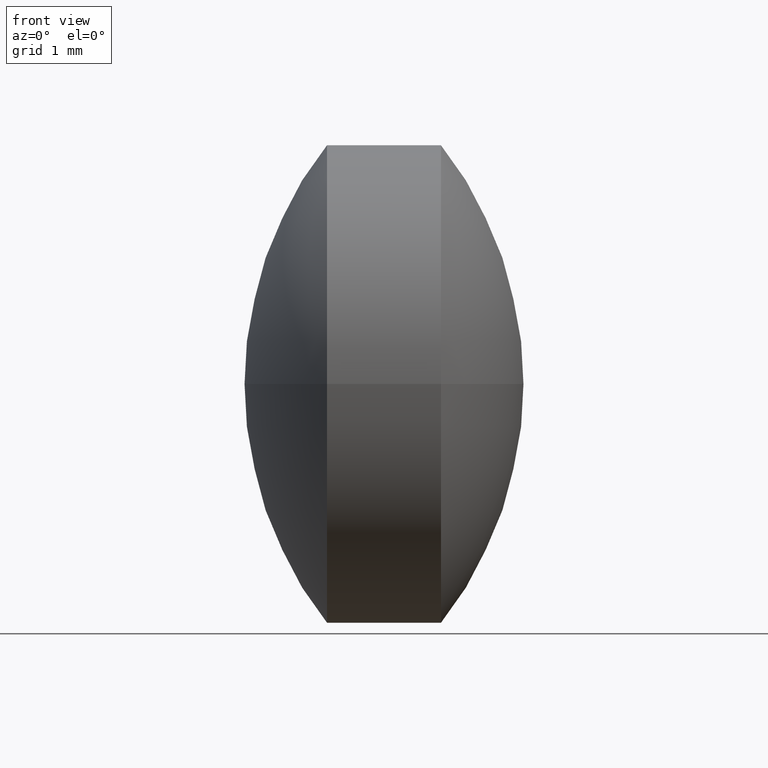
[diagram: clean part render]
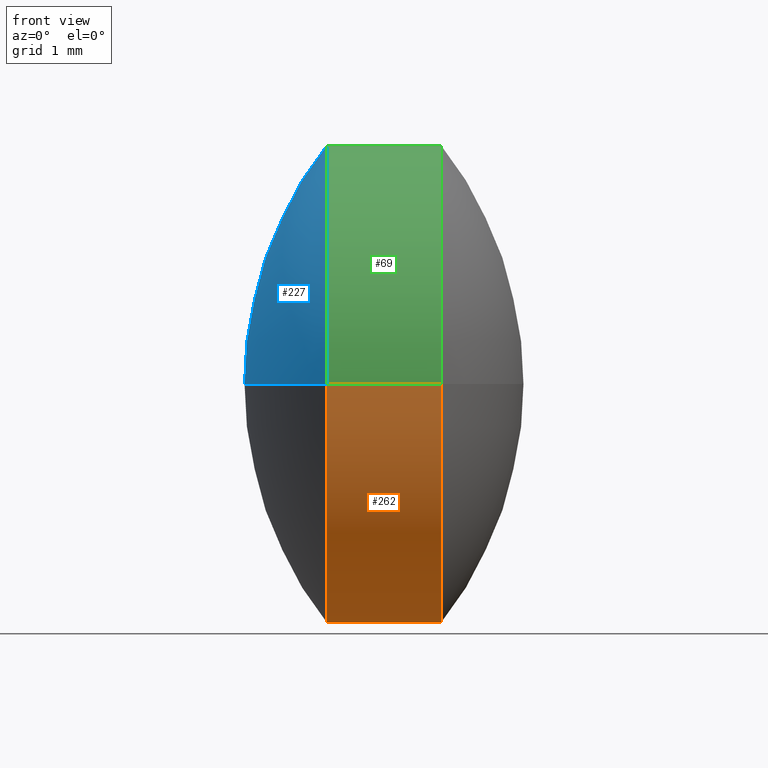
[diagram: same view with three faces highlighted in distinct colors, each labeled with its STEP entity id]
A machine part, front view with three faces highlighted in distinct colors.
Their STEP definitions:

[orange] entity #262 — the highlighted cylindrical surface (partial cylindrical patch) has radius 3.15 mm, axis along (-1, 0, -0).
#12 = CARTESIAN_POINT ( 'NONE',  ( 20.69435814883362200, 15.20832724590803800, 0.0000000000000000000 ) ) ;
#16 = DIRECTION ( 'NONE',  ( -1.000000000000000000, 1.322154552567026900E-015, -0.0000000000000000000 ) ) ;
#19 = ORIENTED_EDGE ( 'NONE', *, *, #263, .F. ) ;
#22 = AXIS2_PLACEMENT_3D ( 'NONE', #299, #16, #180 ) ;
#26 = CARTESIAN_POINT ( 'NONE',  ( 20.69435814883361500, 8.908327245908047600, -3.857637417314156800E-016 ) ) ;
#62 = DIRECTION ( 'NONE',  ( -1.000000000000000000, 1.322154552567026900E-015, -0.0000000000000000000 ) ) ;
#82 = CARTESIAN_POINT ( 'NONE',  ( 18.16424793177497300, 8.908327245908051100, 0.0000000000000000000 ) ) ;
#87 = VERTEX_POINT ( 'NONE', #267 ) ;
#96 = CARTESIAN_POINT ( 'NONE',  ( 22.19435214883361600, 8.908327245908040500, 0.0000000000000000000 ) ) ;
#107 = DIRECTION ( 'NONE',  ( -1.000000000000000000, 1.322154552567026900E-015, -0.0000000000000000000 ) ) ;
#120 = EDGE_CURVE ( 'NONE', #87, #194, #214, .T. ) ;
#126 = CYLINDRICAL_SURFACE ( 'NONE', #257, 3.149999999999995000 ) ;
#130 = VECTOR ( 'NONE', #243, 1000.000000000000000 ) ;
#145 = DIRECTION ( 'NONE',  ( -1.101411730778927500E-015, -1.000000000000000000, 0.0000000000000000000 ) ) ;
#146 = ORIENTED_EDGE ( 'NONE', *, *, #158, .T. ) ;
#149 = CARTESIAN_POINT ( 'NONE',  ( 20.69435814883361900, 12.05832724590804300, 0.0000000000000000000 ) ) ;
#158 = EDGE_CURVE ( 'NONE', #289, #282, #234, .T. ) ;
#180 = DIRECTION ( 'NONE',  ( -1.101411730778926900E-015, -1.000000000000000000, 0.0000000000000000000 ) ) ;
#181 = CARTESIAN_POINT ( 'NONE',  ( 18.16424793177497700, 12.05832724590804600, 0.0000000000000000000 ) ) ;
#185 = CIRCLE ( 'NONE', #200, 3.149999999999993200 ) ;
#194 = VERTEX_POINT ( 'NONE', #12 ) ;
#197 = CARTESIAN_POINT ( 'NONE',  ( 18.16424793177498000, 15.20832724590804100, 3.857637417314155300E-016 ) ) ;
#199 = ORIENTED_EDGE ( 'NONE', *, *, #242, .T. ) ;
#200 = AXIS2_PLACEMENT_3D ( 'NONE', #149, #208, #145 ) ;
#208 = DIRECTION ( 'NONE',  ( -1.000000000000000000, 1.322154552567026900E-015, -0.0000000000000000000 ) ) ;
#214 = LINE ( 'NONE', #197, #130 ) ;
#226 = DIRECTION ( 'NONE',  ( -1.101411730778926900E-015, -1.000000000000000000, 0.0000000000000000000 ) ) ;
#234 = LINE ( 'NONE', #82, #245 ) ;
#242 = EDGE_CURVE ( 'NONE', #87, #289, #265, .T. ) ;
#243 = DIRECTION ( 'NONE',  ( -1.000000000000000000, 1.322154552567026900E-015, -0.0000000000000000000 ) ) ;
#245 = VECTOR ( 'NONE', #107, 1000.000000000000000 ) ;
#255 = EDGE_LOOP ( 'NONE', ( #269, #199, #146, #19 ) ) ;
#257 = AXIS2_PLACEMENT_3D ( 'NONE', #181, #62, #226 ) ;
#262 = ADVANCED_FACE ( 'NONE', ( #281 ), #126, .T. ) ;
#263 = EDGE_CURVE ( 'NONE', #194, #282, #185, .T. ) ;
#265 = CIRCLE ( 'NONE', #22, 3.149999999999995000 ) ;
#267 = CARTESIAN_POINT ( 'NONE',  ( 22.19435214883362300, 15.20832724590804100, 3.857637417314162200E-016 ) ) ;
#269 = ORIENTED_EDGE ( 'NONE', *, *, #120, .F. ) ;
#281 = FACE_OUTER_BOUND ( 'NONE', #255, .T. ) ;
#282 = VERTEX_POINT ( 'NONE', #26 ) ;
#289 = VERTEX_POINT ( 'NONE', #96 ) ;
#299 = CARTESIAN_POINT ( 'NONE',  ( 22.19435214883362000, 12.05832724590804100, 0.0000000000000000000 ) ) ;

[blue] entity #227 — the highlighted spherical surface has radius 5.1151 mm.
#5 = FACE_OUTER_BOUND ( 'NONE', #30, .T. ) ;
#12 = CARTESIAN_POINT ( 'NONE',  ( 20.69435814883362200, 15.20832724590803800, 0.0000000000000000000 ) ) ;
#15 = SPHERICAL_SURFACE ( 'NONE', #276, 5.115099217058601200 ) ;
#26 = CARTESIAN_POINT ( 'NONE',  ( 20.69435814883361500, 8.908327245908047600, -3.857637417314156800E-016 ) ) ;
#30 = EDGE_LOOP ( 'NONE', ( #266, #202, #33 ) ) ;
#33 = ORIENTED_EDGE ( 'NONE', *, *, #204, .T. ) ;
#34 = CARTESIAN_POINT ( 'NONE',  ( 19.60936314883361900, 12.05832724590804400, 0.0000000000000000000 ) ) ;
#38 = DIRECTION ( 'NONE',  ( 0.0000000000000000000, 1.000000000000000000, 1.224646799147353000E-016 ) ) ;
#60 = DIRECTION ( 'NONE',  ( 1.000000000000000000, 0.0000000000000000000, 0.0000000000000000000 ) ) ;
#74 = VERTEX_POINT ( 'NONE', #34 ) ;
#88 = EDGE_CURVE ( 'NONE', #282, #194, #295, .T. ) ;
#102 = DIRECTION ( 'NONE',  ( 0.0000000000000000000, 0.0000000000000000000, -1.000000000000000000 ) ) ;
#103 = DIRECTION ( 'NONE',  ( 0.0000000000000000000, 0.0000000000000000000, 1.000000000000000000 ) ) ;
#132 = CARTESIAN_POINT ( 'NONE',  ( 24.72446236589222200, 12.05832724590803700, 0.0000000000000000000 ) ) ;
#134 = DIRECTION ( 'NONE',  ( -1.101411730778927500E-015, -1.000000000000000000, 0.0000000000000000000 ) ) ;
#137 = DIRECTION ( 'NONE',  ( 1.356551184924500000E-015, 1.000000000000000000, 0.0000000000000000000 ) ) ;
#161 = DIRECTION ( 'NONE',  ( 1.619172340779310500E-031, 1.224646799147353200E-016, -1.000000000000000000 ) ) ;
#171 = AXIS2_PLACEMENT_3D ( 'NONE', #244, #161, #38 ) ;
#179 = CARTESIAN_POINT ( 'NONE',  ( 20.69435814883361900, 12.05832724590804300, 0.0000000000000000000 ) ) ;
#194 = VERTEX_POINT ( 'NONE', #12 ) ;
#198 = CIRCLE ( 'NONE', #171, 5.115099217058602000 ) ;
#202 = ORIENTED_EDGE ( 'NONE', *, *, #88, .T. ) ;
#204 = EDGE_CURVE ( 'NONE', #194, #74, #219, .T. ) ;
#217 = CARTESIAN_POINT ( 'NONE',  ( 24.72446236589222200, 12.05832724590803700, 0.0000000000000000000 ) ) ;
#218 = AXIS2_PLACEMENT_3D ( 'NONE', #179, #291, #134 ) ;
#219 = CIRCLE ( 'NONE', #221, 5.115099217058602000 ) ;
#221 = AXIS2_PLACEMENT_3D ( 'NONE', #132, #103, #60 ) ;
#227 = ADVANCED_FACE ( 'NONE', ( #5 ), #15, .T. ) ;
#244 = CARTESIAN_POINT ( 'NONE',  ( 24.72446236589222200, 12.05832724590803700, 0.0000000000000000000 ) ) ;
#247 = EDGE_CURVE ( 'NONE', #282, #74, #198, .T. ) ;
#266 = ORIENTED_EDGE ( 'NONE', *, *, #247, .F. ) ;
#276 = AXIS2_PLACEMENT_3D ( 'NONE', #217, #102, #137 ) ;
#282 = VERTEX_POINT ( 'NONE', #26 ) ;
#291 = DIRECTION ( 'NONE',  ( -1.000000000000000000, 1.322154552567026900E-015, -0.0000000000000000000 ) ) ;
#295 = CIRCLE ( 'NONE', #218, 3.149999999999993200 ) ;

[green] entity #69 — the highlighted cylindrical surface (partial cylindrical patch) has radius 3.15 mm, axis along (-1, 0, -0).
#12 = CARTESIAN_POINT ( 'NONE',  ( 20.69435814883362200, 15.20832724590803800, 0.0000000000000000000 ) ) ;
#26 = CARTESIAN_POINT ( 'NONE',  ( 20.69435814883361500, 8.908327245908047600, -3.857637417314156800E-016 ) ) ;
#31 = DIRECTION ( 'NONE',  ( -1.101411730778926900E-015, -1.000000000000000000, 0.0000000000000000000 ) ) ;
#50 = FACE_OUTER_BOUND ( 'NONE', #142, .T. ) ;
#54 = CARTESIAN_POINT ( 'NONE',  ( 22.19435214883362000, 12.05832724590804100, 0.0000000000000000000 ) ) ;
#55 = AXIS2_PLACEMENT_3D ( 'NONE', #54, #238, #156 ) ;
#69 = ADVANCED_FACE ( 'NONE', ( #50 ), #106, .T. ) ;
#82 = CARTESIAN_POINT ( 'NONE',  ( 18.16424793177497300, 8.908327245908051100, 0.0000000000000000000 ) ) ;
#87 = VERTEX_POINT ( 'NONE', #267 ) ;
#88 = EDGE_CURVE ( 'NONE', #282, #194, #295, .T. ) ;
#96 = CARTESIAN_POINT ( 'NONE',  ( 22.19435214883361600, 8.908327245908040500, 0.0000000000000000000 ) ) ;
#98 = ORIENTED_EDGE ( 'NONE', *, *, #158, .F. ) ;
#106 = CYLINDRICAL_SURFACE ( 'NONE', #287, 3.149999999999995000 ) ;
#107 = DIRECTION ( 'NONE',  ( -1.000000000000000000, 1.322154552567026900E-015, -0.0000000000000000000 ) ) ;
#110 = ORIENTED_EDGE ( 'NONE', *, *, #88, .F. ) ;
#120 = EDGE_CURVE ( 'NONE', #87, #194, #214, .T. ) ;
#128 = DIRECTION ( 'NONE',  ( -1.000000000000000000, 1.322154552567026900E-015, -0.0000000000000000000 ) ) ;
#130 = VECTOR ( 'NONE', #243, 1000.000000000000000 ) ;
#134 = DIRECTION ( 'NONE',  ( -1.101411730778927500E-015, -1.000000000000000000, 0.0000000000000000000 ) ) ;
#140 = EDGE_CURVE ( 'NONE', #289, #87, #209, .T. ) ;
#142 = EDGE_LOOP ( 'NONE', ( #304, #151, #110, #98 ) ) ;
#151 = ORIENTED_EDGE ( 'NONE', *, *, #120, .T. ) ;
#156 = DIRECTION ( 'NONE',  ( -1.101411730778926900E-015, -1.000000000000000000, 0.0000000000000000000 ) ) ;
#158 = EDGE_CURVE ( 'NONE', #289, #282, #234, .T. ) ;
#179 = CARTESIAN_POINT ( 'NONE',  ( 20.69435814883361900, 12.05832724590804300, 0.0000000000000000000 ) ) ;
#194 = VERTEX_POINT ( 'NONE', #12 ) ;
#197 = CARTESIAN_POINT ( 'NONE',  ( 18.16424793177498000, 15.20832724590804100, 3.857637417314155300E-016 ) ) ;
#209 = CIRCLE ( 'NONE', #55, 3.149999999999995000 ) ;
#214 = LINE ( 'NONE', #197, #130 ) ;
#218 = AXIS2_PLACEMENT_3D ( 'NONE', #179, #291, #134 ) ;
#234 = LINE ( 'NONE', #82, #245 ) ;
#235 = CARTESIAN_POINT ( 'NONE',  ( 18.16424793177497700, 12.05832724590804600, 0.0000000000000000000 ) ) ;
#238 = DIRECTION ( 'NONE',  ( -1.000000000000000000, 1.322154552567026900E-015, -0.0000000000000000000 ) ) ;
#243 = DIRECTION ( 'NONE',  ( -1.000000000000000000, 1.322154552567026900E-015, -0.0000000000000000000 ) ) ;
#245 = VECTOR ( 'NONE', #107, 1000.000000000000000 ) ;
#267 = CARTESIAN_POINT ( 'NONE',  ( 22.19435214883362300, 15.20832724590804100, 3.857637417314162200E-016 ) ) ;
#282 = VERTEX_POINT ( 'NONE', #26 ) ;
#287 = AXIS2_PLACEMENT_3D ( 'NONE', #235, #128, #31 ) ;
#289 = VERTEX_POINT ( 'NONE', #96 ) ;
#291 = DIRECTION ( 'NONE',  ( -1.000000000000000000, 1.322154552567026900E-015, -0.0000000000000000000 ) ) ;
#295 = CIRCLE ( 'NONE', #218, 3.149999999999993200 ) ;
#304 = ORIENTED_EDGE ( 'NONE', *, *, #140, .T. ) ;